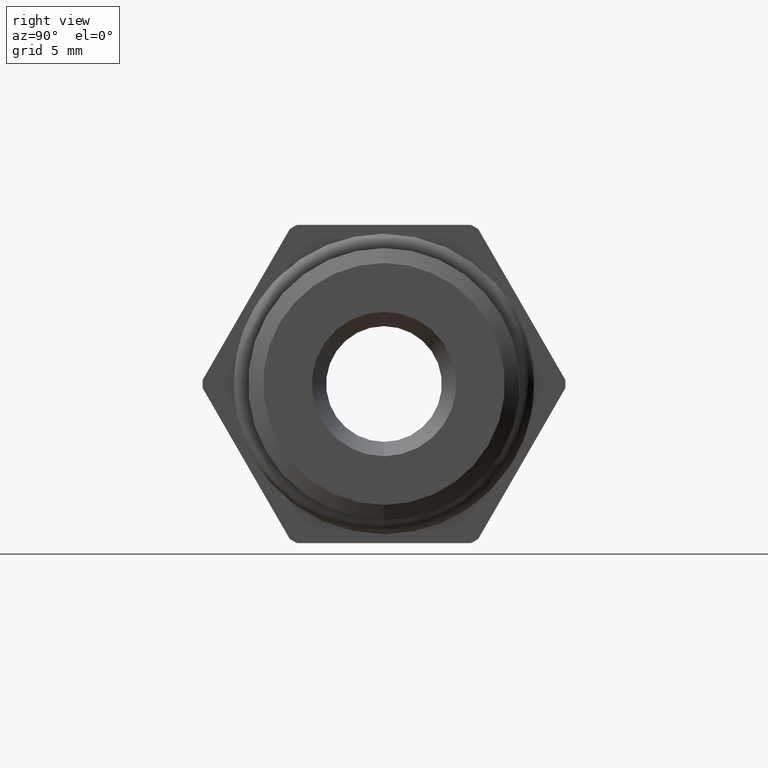
[diagram: clean part render]
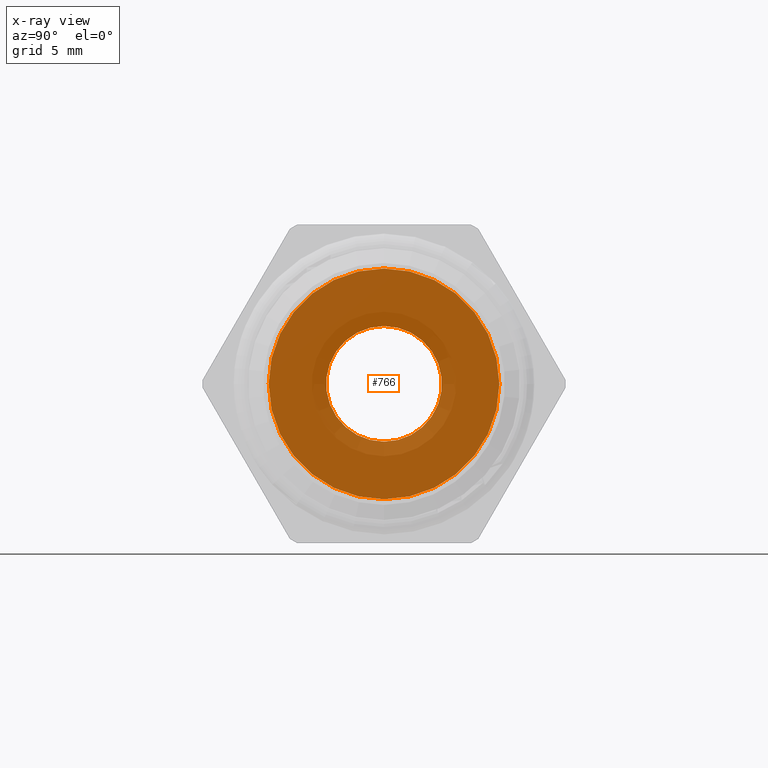
[diagram: x-ray — body ghosted, one internal face saturated and labeled with its STEP entity id]
A machine part, right view, then the same camera in x-ray: the body is ghosted and one INTERNAL B-rep face — a face not visible from any outside direction — is saturated and labeled: STEP entity #766.
In plain terms, the highlighted planar face has unit normal (1, 0, 0).
Its self-contained STEP definition (entity closure, byte-faithful):
#160 = VERTEX_POINT ( 'NONE', #1523 ) ;
#178 = EDGE_CURVE ( 'NONE', #160, #179, #1555, .T. ) ;
#179 = VERTEX_POINT ( 'NONE', #1550 ) ;
#748 = ORIENTED_EDGE ( 'NONE', *, *, #1177, .T. ) ;
#765 = EDGE_CURVE ( 'NONE', #179, #160, #2761, .T. ) ;
#766 = ADVANCED_FACE ( 'NONE', ( #2756, #2755 ), #2754, .F. ) ;
#767 = EDGE_LOOP ( 'NONE', ( #768, #769 ) ) ;
#768 = ORIENTED_EDGE ( 'NONE', *, *, #765, .F. ) ;
#769 = ORIENTED_EDGE ( 'NONE', *, *, #178, .F. ) ;
#770 = EDGE_LOOP ( 'NONE', ( #771, #748 ) ) ;
#771 = ORIENTED_EDGE ( 'NONE', *, *, #772, .T. ) ;
#772 = EDGE_CURVE ( 'NONE', #1144, #1143, #2749, .T. ) ;
#1143 = VERTEX_POINT ( 'NONE', #3255 ) ;
#1144 = VERTEX_POINT ( 'NONE', #3254 ) ;
#1177 = EDGE_CURVE ( 'NONE', #1143, #1144, #3323, .T. ) ;
#1523 = CARTESIAN_POINT ( 'NONE',  ( -0.3450000000000000300, 1.224646799147353000E-017, -0.09999999999999997800 ) ) ;
#1550 = CARTESIAN_POINT ( 'NONE',  ( -0.3450000000000000300, 0.0000000000000000000, 0.09999999999999997800 ) ) ;
#1551 = DIRECTION ( 'NONE',  ( 0.0000000000000000000, 0.0000000000000000000, 1.000000000000000000 ) ) ;
#1552 = DIRECTION ( 'NONE',  ( -1.000000000000000000, 0.0000000000000000000, 0.0000000000000000000 ) ) ;
#1553 = CARTESIAN_POINT ( 'NONE',  ( -0.3450000000000000300, 0.0000000000000000000, 0.0000000000000000000 ) ) ;
#1554 = AXIS2_PLACEMENT_3D ( 'NONE', #1553, #1552, #1551 ) ;
#1555 = CIRCLE ( 'NONE', #1554, 0.09999999999999997800 ) ;
#2745 = DIRECTION ( 'NONE',  ( 0.0000000000000000000, 0.0000000000000000000, 1.000000000000000000 ) ) ;
#2746 = DIRECTION ( 'NONE',  ( -1.000000000000000000, 0.0000000000000000000, 0.0000000000000000000 ) ) ;
#2747 = CARTESIAN_POINT ( 'NONE',  ( -0.3450000000000000300, 0.0000000000000000000, 0.0000000000000000000 ) ) ;
#2748 = AXIS2_PLACEMENT_3D ( 'NONE', #2747, #2746, #2745 ) ;
#2749 = CIRCLE ( 'NONE', #2748, 0.1993749999999999700 ) ;
#2750 = DIRECTION ( 'NONE',  ( 0.0000000000000000000, 0.0000000000000000000, -1.000000000000000000 ) ) ;
#2751 = DIRECTION ( 'NONE',  ( 1.000000000000000000, 0.0000000000000000000, 0.0000000000000000000 ) ) ;
#2752 = CARTESIAN_POINT ( 'NONE',  ( -0.3450000000000000800, 0.1993749999999999700, 0.0000000000000000000 ) ) ;
#2753 = AXIS2_PLACEMENT_3D ( 'NONE', #2752, #2751, #2750 ) ;
#2754 = PLANE ( 'NONE',  #2753 ) ;
#2755 = FACE_OUTER_BOUND ( 'NONE', #770, .T. ) ;
#2756 = FACE_BOUND ( 'NONE', #767, .T. ) ;
#2757 = DIRECTION ( 'NONE',  ( 0.0000000000000000000, 0.0000000000000000000, 1.000000000000000000 ) ) ;
#2758 = DIRECTION ( 'NONE',  ( -1.000000000000000000, 0.0000000000000000000, 0.0000000000000000000 ) ) ;
#2759 = CARTESIAN_POINT ( 'NONE',  ( -0.3450000000000000300, 0.0000000000000000000, 0.0000000000000000000 ) ) ;
#2760 = AXIS2_PLACEMENT_3D ( 'NONE', #2759, #2758, #2757 ) ;
#2761 = CIRCLE ( 'NONE', #2760, 0.09999999999999997800 ) ;
#3254 = CARTESIAN_POINT ( 'NONE',  ( -0.3450000000000000300, 0.0000000000000000000, 0.1993749999999999700 ) ) ;
#3255 = CARTESIAN_POINT ( 'NONE',  ( -0.3450000000000000300, 2.441639555800035100E-017, -0.1993749999999999700 ) ) ;
#3320 = DIRECTION ( 'NONE',  ( 0.0000000000000000000, 0.0000000000000000000, 1.000000000000000000 ) ) ;
#3321 = DIRECTION ( 'NONE',  ( -1.000000000000000000, 0.0000000000000000000, 0.0000000000000000000 ) ) ;
#3322 = AXIS2_PLACEMENT_3D ( 'NONE', #3328, #3321, #3320 ) ;
#3323 = CIRCLE ( 'NONE', #3322, 0.1993749999999999700 ) ;
#3328 = CARTESIAN_POINT ( 'NONE',  ( -0.3450000000000000300, 0.0000000000000000000, 0.0000000000000000000 ) ) ;